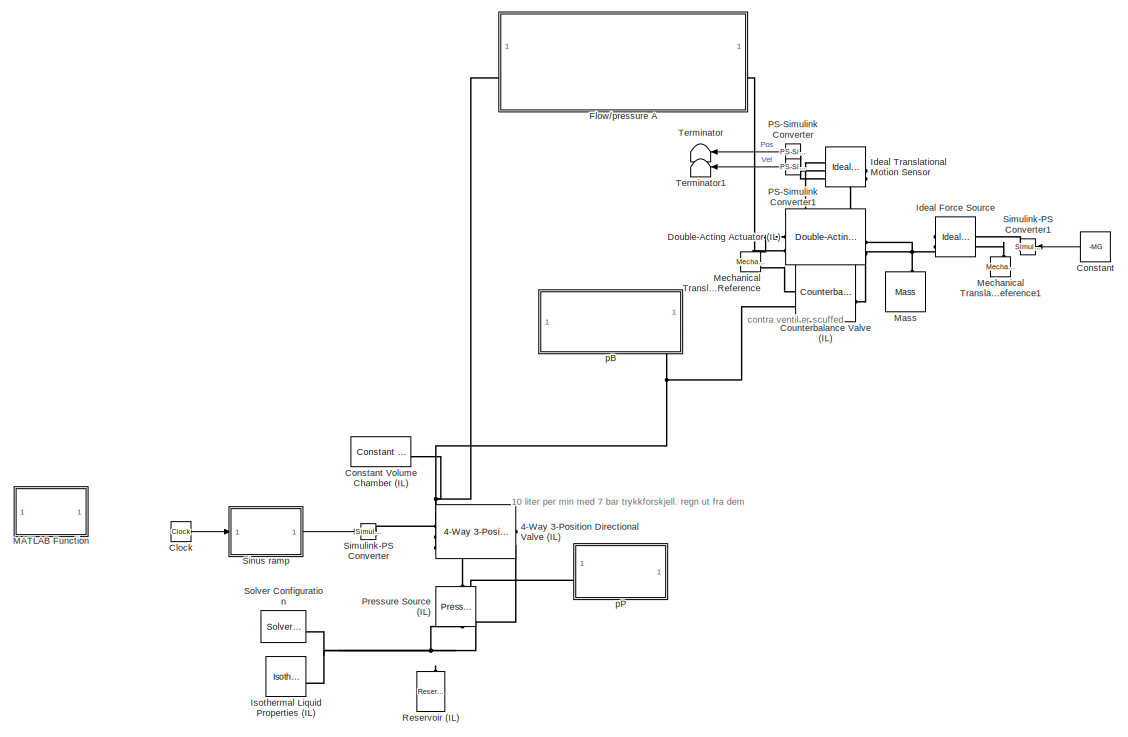
[diagram: root canvas - part 1/2, left side, full height]
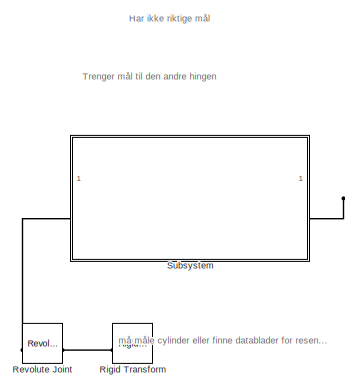
[diagram: root canvas - part 2/2, middle right region]
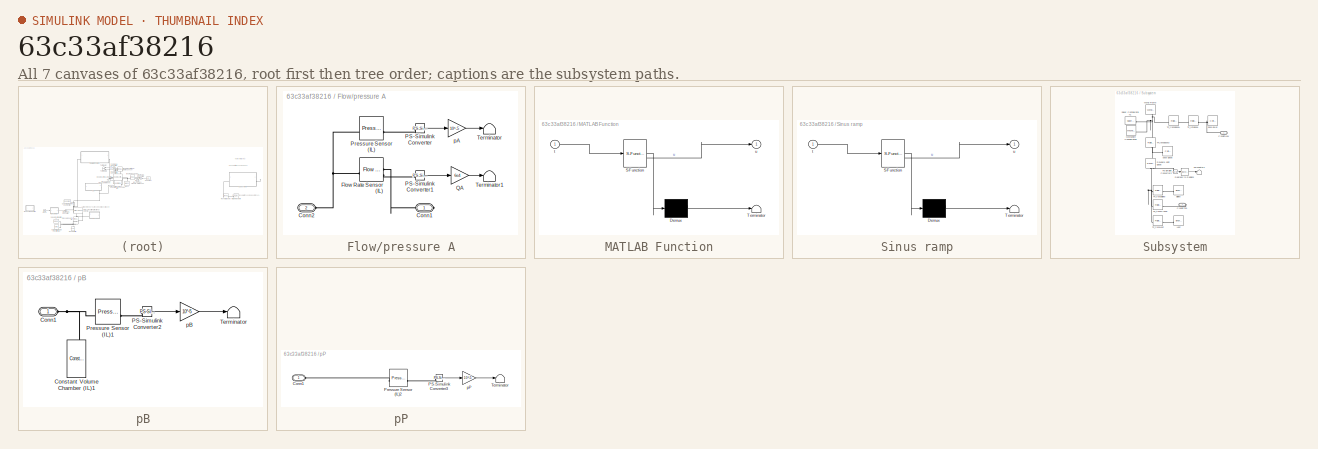
[diagram: thumbnail index - all 7 canvases of the model, root first then tree order]
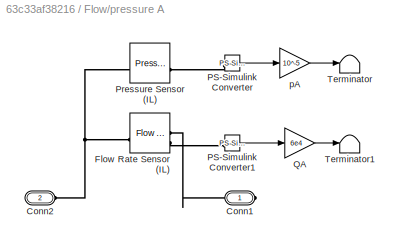
MODEL slx_63c33af38216
KIND model
CONFIG AbsTol = auto
CONFIG EnableMultiTasking = off
CONFIG FixedStep = auto
CONFIG MaxStep = auto
CONFIG MinStep = auto
CONFIG RelTol = 1e-3
CONFIG SampleTimeConstraint = Unconstrained
CONFIG SolverName = VariableStepAuto
CONFIG StartTime = 0.0
CONFIG StopTime = 15
WORKSPACE source: MATLAB code (in-file)
WORKSPACE code: clear;
WORKSPACE rho = 875
WORKSPACE beta = 1000
WORKSPACE pP = 140
WORKSPACE dp0 = 70e5  (= 7000000)
WORKSPACE Q0 = 100/6e4  (= 0.00166666666667)
WORKSPACE Cd = 0.75
WORKSPACE AdMax_SI = Q0/(Cd*(2/rho*dp0)^0.5)  (= 1.75682092232e-05)
WORKSPACE AdMax = AdMax_SI*1e6  (= 17.5682092232)
WORKSPACE d = 42
WORKSPACE dr = 30
WORKSPACE A = pi*d^2/4  (= 1385.44236023)
WORKSPACE Ar = pi*dr^2/4  (= 706.858347058)
WORKSPACE Aa = A - Ar  (= 678.584013175)
WORKSPACE L0 = 1600
WORKSPACE m = 75*4 + 20 + 90  (= 410)
WORKSPACE g = 9.81
WORKSPACE MG = m*g  (= 4022.1)
WORKSPACE pLoad = MG/Ar  (= 5.69010752542)
WORKSPACE x_Init = 200
WORKSPACE Cx = 440
WORKSPACE Cz = -1060
WORKSPACE theta_Init = 0
WORKSPACE thetaDot_Init = 0
WORKSPACE L1 = 2000 + 1463 + 215  (= 3678)
WORKSPACE B1 = 100
WORKSPACE H1 = 150
WORKSPACE t1 = 6
WORKSPACE abx = 0.730-0.100-0.080  (= 0.55)
WORKSPACE aby = (0.223-0.075)  (= 0.148)
WORKSPACE L2 = 50*4 + 12  (= 212)
WORKSPACE B2 = 700
WORKSPACE H2 = 300
BLOCK [Reference] 4-Way 3-Position Directional Valve (IL)  REF=SimscapeFluids_lib/Isothermal Liquid/Valves & Orifices/Directional Control
Valves/4-Way 3-Position
Directional Valve
(IL)
  SourceBlock = SimscapeFluids_lib/Isothermal Liquid/Valves & Orifices/Directional Control\nValves/4-Way 3-Position\nDirectional Valve\n(IL)
  SourceType = 4-Way 3-Position\nDirectional Valve\n(IL)
BLOCK [Clock] Clock
BLOCK [Constant] Constant
  NameLocation = top
  Value = -MG
BLOCK [Reference] Constant Volume Chamber (IL)  REF=fl_lib/Isothermal Liquid/Elements/Constant Volume
Chamber (IL)
  SourceBlock = fl_lib/Isothermal Liquid/Elements/Constant Volume\nChamber (IL)
  SourceType = Constant Volume\nChamber (IL)
BLOCK [Reference] Counterbalance Valve (IL)  REF=SimscapeFluids_lib/Isothermal Liquid/Valves & Orifices/Pressure Control
Valves/Counterbalance Valve
(IL)
  SourceBlock = SimscapeFluids_lib/Isothermal Liquid/Valves & Orifices/Pressure Control\nValves/Counterbalance Valve\n(IL)
  SourceType = Counterbalance Valve\n(IL)
BLOCK [Reference] Double-Acting Actuator (IL)  REF=SimscapeFluids_lib/Isothermal Liquid/Actuators/Double-Acting
Actuator (IL)
  SourceBlock = SimscapeFluids_lib/Isothermal Liquid/Actuators/Double-Acting\nActuator (IL)
  SourceType = Double-Acting\nActuator (IL)
BLOCK [SubSystem] Flow//pressure A
BLOCK [PMIOPort] Flow//pressure A/Conn1
  Side = Right
BLOCK [PMIOPort] Flow//pressure A/Conn2
  Port = 2
  Side = Left
BLOCK [Reference] Flow//pressure A/Flow Rate Sensor (IL)  REF=fl_lib/Isothermal Liquid/Sensors/Flow Rate Sensor
(IL)
  SourceBlock = fl_lib/Isothermal Liquid/Sensors/Flow Rate Sensor\n(IL)
  SourceType = Flow Rate Sensor\n(IL)
BLOCK [Reference] Flow//pressure A/PS-Simulink Converter  REF=nesl_utility/PS-Simulink
Converter
  SourceBlock = nesl_utility/PS-Simulink\nConverter
  SourceType = PS-Simulink\nConverter
BLOCK [Reference] Flow//pressure A/PS-Simulink Converter1  REF=nesl_utility/PS-Simulink
Converter
  SourceBlock = nesl_utility/PS-Simulink\nConverter
  SourceType = PS-Simulink\nConverter
BLOCK [Reference] Flow//pressure A/Pressure Sensor (IL)  REF=fl_lib/Isothermal Liquid/Sensors/Pressure Sensor (IL)
  SourceBlock = fl_lib/Isothermal Liquid/Sensors/Pressure Sensor (IL)
  SourceType = Pressure Sensor (IL)
BLOCK [Gain] Flow//pressure A/QA
  Gain = 6e4
BLOCK [Terminator] Flow//pressure A/Terminator
BLOCK [Terminator] Flow//pressure A/Terminator1
BLOCK [Gain] Flow//pressure A/pA
  Gain = 10^-5
BLOCK [Reference] Ideal Force Source  REF=fl_lib/Mechanical/Mechanical Sources/Ideal Force Source
  NameLocation = top
  SourceBlock = fl_lib/Mechanical/Mechanical Sources/Ideal Force Source
  SourceType = Ideal Force Source
BLOCK [Reference] Ideal Translational Motion Sensor  REF=fl_lib/Mechanical/Mechanical Sensors/Ideal Translational
Motion Sensor
  NameLocation = top
  SourceBlock = fl_lib/Mechanical/Mechanical Sensors/Ideal Translational\nMotion Sensor
  SourceType = Ideal Translational\nMotion Sensor
BLOCK [Reference] Isothermal Liquid Properties (IL)  REF=fl_lib/Isothermal Liquid/Utilities/Isothermal Liquid
Properties (IL)
  SourceBlock = fl_lib/Isothermal Liquid/Utilities/Isothermal Liquid\nProperties (IL)
  SourceType = Isothermal Liquid\nProperties (IL)
BLOCK [SubSystem] MATLAB Function
  Commented = on
  ErrorFcn = Stateflow.Translate.translate
  PermitHierarchicalResolution = ExplicitOnly
  SFBlockType = MATLAB Function
  TreatAsAtomicUnit = on
BLOCK [Demux] MATLAB Function/ Demux 
  Outputs = 1
BLOCK [S-Function] MATLAB Function/ SFunction 
  EnableBusSupport = off
  FunctionName = sf_sfun
  PortCounts = [1 2]
  SFcnIsStateOwnerBlock = off
  SFunctionDeploymentMode = off
  Tag = Stateflow S-Function 2
BLOCK [Terminator] MATLAB Function/ Terminator 
BLOCK [Inport] MATLAB Function/t
BLOCK [Outport] MATLAB Function/u
BLOCK [Reference] Mass  REF=fl_lib/Mechanical/Translational
Elements/Mass
  NameLocation = right
  SourceBlock = fl_lib/Mechanical/Translational\nElements/Mass
  SourceType = Mass
BLOCK [Reference] Mechanical Translational Reference  REF=fl_lib/Mechanical/Translational
Elements/Mechanical
Translational
Reference
  NameLocation = right
  SourceBlock = fl_lib/Mechanical/Translational\nElements/Mechanical\nTranslational\nReference
  SourceType = Mechanical\nTranslational\nReference
BLOCK [Reference] Mechanical Translational Reference1  REF=fl_lib/Mechanical/Translational
Elements/Mechanical
Translational
Reference
  NameLocation = right
  SourceBlock = fl_lib/Mechanical/Translational\nElements/Mechanical\nTranslational\nReference
  SourceType = Mechanical\nTranslational\nReference
BLOCK [Reference] PS-Simulink Converter  REF=nesl_utility/PS-Simulink
Converter
  NameLocation = top
  SourceBlock = nesl_utility/PS-Simulink\nConverter
  SourceType = PS-Simulink\nConverter
BLOCK [Reference] PS-Simulink Converter1  REF=nesl_utility/PS-Simulink
Converter
  NameLocation = top
  SourceBlock = nesl_utility/PS-Simulink\nConverter
  SourceType = PS-Simulink\nConverter
BLOCK [Reference] Pressure Source (IL)  REF=fl_lib/Isothermal Liquid/Sources/Pressure Source (IL)
  NameLocation = right
  SourceBlock = fl_lib/Isothermal Liquid/Sources/Pressure Source (IL)
  SourceType = Pressure Source (IL)
BLOCK [Reference] Reservoir (IL)  REF=fl_lib/Isothermal Liquid/Elements/Reservoir (IL)
  NameLocation = right
  SourceBlock = fl_lib/Isothermal Liquid/Elements/Reservoir (IL)
  SourceType = Reservoir (IL)
BLOCK [Reference] Revolute Joint  REF=sm_lib/Joints/Revolute Joint
  SourceBlock = sm_lib/Joints/Revolute Joint
  SourceType = Revolute Joint
BLOCK [Reference] Rigid Transform  REF=sm_lib/Frames and
Transforms/Rigid
Transform
  SourceBlock = sm_lib/Frames and\nTransforms/Rigid\nTransform
  SourceType = Rigid\nTransform
BLOCK [Reference] Simulink-PS Converter  REF=nesl_utility/Simulink-PS
Converter
  SourceBlock = nesl_utility/Simulink-PS\nConverter
  SourceType = Simulink-PS\nConverter
BLOCK [Reference] Simulink-PS Converter1  REF=nesl_utility/Simulink-PS
Converter
  NameLocation = top
  SourceBlock = nesl_utility/Simulink-PS\nConverter
  SourceType = Simulink-PS\nConverter
BLOCK [SubSystem] Sinus ramp
  ErrorFcn = Stateflow.Translate.translate
  PermitHierarchicalResolution = ExplicitOnly
  SFBlockType = MATLAB Function
  TreatAsAtomicUnit = on
BLOCK [Demux] Sinus ramp/ Demux 
  Outputs = 1
BLOCK [S-Function] Sinus ramp/ SFunction 
  EnableBusSupport = off
  FunctionName = sf_sfun
  PortCounts = [1 2]
  SFcnIsStateOwnerBlock = off
  SFunctionDeploymentMode = off
  Tag = Stateflow S-Function 1
BLOCK [Terminator] Sinus ramp/ Terminator 
BLOCK [Inport] Sinus ramp/t
BLOCK [Outport] Sinus ramp/u
BLOCK [Reference] Solver Configuration  REF=nesl_utility/Solver
Configuration
  SourceBlock = nesl_utility/Solver\nConfiguration
  SourceType = Solver\nConfiguration
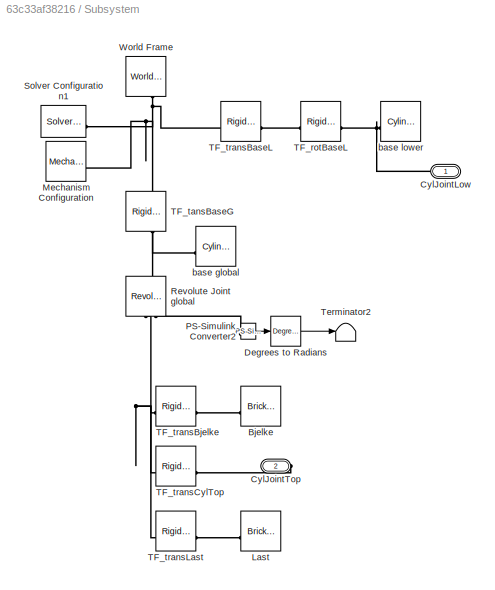
BLOCK [SubSystem] Subsystem
BLOCK [Reference] Subsystem/Bjelke  REF=sm_lib/Body Elements/Brick Solid
  NameLocation = top
  SourceBlock = sm_lib/Body Elements/Brick Solid
  SourceType = Brick Solid
BLOCK [PMIOPort] Subsystem/CylJointLow
  NameLocation = top
  Side = Left
BLOCK [PMIOPort] Subsystem/CylJointTop
  NameLocation = top
  Port = 2
  Side = Right
BLOCK [Reference] Subsystem/Degrees to Radians  REF=simulink_extras/Transformations/Degrees to
Radians
  SourceBlock = simulink_extras/Transformations/Degrees to\nRadians
  SourceType = DegreesToRadians
BLOCK [Reference] Subsystem/Last  REF=sm_lib/Body Elements/Brick Solid
  NameLocation = top
  SourceBlock = sm_lib/Body Elements/Brick Solid
  SourceType = Brick Solid
BLOCK [Reference] Subsystem/Mechanism Configuration  REF=sm_lib/Utilities/Mechanism
Configuration
  SourceBlock = sm_lib/Utilities/Mechanism\nConfiguration
  SourceType = Mechanism\nConfiguration
BLOCK [Reference] Subsystem/PS-Simulink Converter2  REF=nesl_utility/PS-Simulink
Converter
  SourceBlock = nesl_utility/PS-Simulink\nConverter
  SourceType = PS-Simulink\nConverter
BLOCK [Reference] Subsystem/Revolute Joint global  REF=sm_lib/Joints/Revolute Joint
  NameLocation = left
  SourceBlock = sm_lib/Joints/Revolute Joint
  SourceType = Revolute Joint
BLOCK [Reference] Subsystem/Solver Configuration1  REF=nesl_utility/Solver
Configuration
  SourceBlock = nesl_utility/Solver\nConfiguration
  SourceType = Solver\nConfiguration
BLOCK [Reference] Subsystem/TF_rotBaseL  REF=sm_lib/Frames and
Transforms/Rigid
Transform
  SourceBlock = sm_lib/Frames and\nTransforms/Rigid\nTransform
  SourceType = Rigid\nTransform
BLOCK [Reference] Subsystem/TF_tansBaseG  REF=sm_lib/Frames and
Transforms/Rigid
Transform
  NameLocation = left
  SourceBlock = sm_lib/Frames and\nTransforms/Rigid\nTransform
  SourceType = Rigid\nTransform
BLOCK [Reference] Subsystem/TF_transBaseL  REF=sm_lib/Frames and
Transforms/Rigid
Transform
  SourceBlock = sm_lib/Frames and\nTransforms/Rigid\nTransform
  SourceType = Rigid\nTransform
BLOCK [Reference] Subsystem/TF_transBjelke  REF=sm_lib/Frames and
Transforms/Rigid
Transform
  SourceBlock = sm_lib/Frames and\nTransforms/Rigid\nTransform
  SourceType = Rigid\nTransform
BLOCK [Reference] Subsystem/TF_transCylTop  REF=sm_lib/Frames and
Transforms/Rigid
Transform
  SourceBlock = sm_lib/Frames and\nTransforms/Rigid\nTransform
  SourceType = Rigid\nTransform
BLOCK [Reference] Subsystem/TF_transLast  REF=sm_lib/Frames and
Transforms/Rigid
Transform
  SourceBlock = sm_lib/Frames and\nTransforms/Rigid\nTransform
  SourceType = Rigid\nTransform
BLOCK [Terminator] Subsystem/Terminator2
BLOCK [Reference] Subsystem/World Frame  REF=sm_lib/Frames and
Transforms/World Frame
  NameLocation = left
  SourceBlock = sm_lib/Frames and\nTransforms/World Frame
  SourceType = World Frame
BLOCK [Reference] Subsystem/base global  REF=sm_lib/Body Elements/Cylindrical Solid
  NameLocation = top
  SourceBlock = sm_lib/Body Elements/Cylindrical Solid
  SourceType = Cylindrical Solid
BLOCK [Reference] Subsystem/base lower  REF=sm_lib/Body Elements/Cylindrical Solid
  NameLocation = top
  SourceBlock = sm_lib/Body Elements/Cylindrical Solid
  SourceType = Cylindrical Solid
BLOCK [Terminator] Terminator
  NameLocation = top
BLOCK [Terminator] Terminator1
  NameLocation = top
BLOCK [SubSystem] pB
  NameLocation = top
BLOCK [PMIOPort] pB/Conn1
  Side = Left
BLOCK [Reference] pB/Constant Volume Chamber (IL)1  REF=fl_lib/Isothermal Liquid/Elements/Constant Volume
Chamber (IL)
  NameLocation = right
  SourceBlock = fl_lib/Isothermal Liquid/Elements/Constant Volume\nChamber (IL)
  SourceType = Constant Volume\nChamber (IL)
BLOCK [Reference] pB/PS-Simulink Converter2  REF=nesl_utility/PS-Simulink
Converter
  SourceBlock = nesl_utility/PS-Simulink\nConverter
  SourceType = PS-Simulink\nConverter
BLOCK [Reference] pB/Pressure Sensor (IL)1  REF=fl_lib/Isothermal Liquid/Sensors/Pressure Sensor (IL)
  SourceBlock = fl_lib/Isothermal Liquid/Sensors/Pressure Sensor (IL)
  SourceType = Pressure Sensor (IL)
BLOCK [Terminator] pB/Terminator
BLOCK [Gain] pB/pB
  Gain = 10^-5
BLOCK [SubSystem] pP
BLOCK [PMIOPort] pP/Conn1
  Side = Left
BLOCK [Reference] pP/PS-Simulink Converter3  REF=nesl_utility/PS-Simulink
Converter
  SourceBlock = nesl_utility/PS-Simulink\nConverter
  SourceType = PS-Simulink\nConverter
BLOCK [Reference] pP/Pressure Sensor (IL)2  REF=fl_lib/Isothermal Liquid/Sensors/Pressure Sensor (IL)
  SourceBlock = fl_lib/Isothermal Liquid/Sensors/Pressure Sensor (IL)
  SourceType = Pressure Sensor (IL)
BLOCK [Terminator] pP/Terminator
BLOCK [Gain] pP/pP
  Gain = 10^-5
ANNOTATION (root): 10 liter per min med 7 bar trykkforskjell. regn ut fra dem
ANNOTATION (root): Har ikke riktige mål
ANNOTATION (root): Trenger mål til den andre hingen
ANNOTATION (root): contra ventil er scuffed
ANNOTATION (root): må måle cylinder eller finne datablader for resen...
LINE Clock:1 -> Sinus ramp:1
LINE Constant:1 -> Simulink-PS Converter1:1
LINE Flow//pressure A/PS-Simulink Converter1:1 -> Flow//pressure A/QA:1
LINE Flow//pressure A/PS-Simulink Converter:1 -> Flow//pressure A/pA:1
LINE Flow//pressure A/QA:1 -> Flow//pressure A/Terminator1:1
LINE Flow//pressure A/pA:1 -> Flow//pressure A/Terminator:1
LINE PS-Simulink Converter1:1 -> Terminator1:1
LINE PS-Simulink Converter:1 -> Terminator:1
LINE Sinus ramp:1 -> Simulink-PS Converter:1
LINE Subsystem/Degrees to Radians:1 -> Subsystem/Terminator2:1
LINE Subsystem/PS-Simulink Converter2:1 -> Subsystem/Degrees to Radians:1
LINE pB/PS-Simulink Converter2:1 -> pB/pB:1
LINE pB/pB:1 -> pB/Terminator:1
LINE pP/PS-Simulink Converter3:1 -> pP/pP:1
LINE pP/pP:1 -> pP/Terminator:1
PLINE 4-Way 3-Position Directional Valve (IL):LConn1 -- Simulink-PS Converter:RConn1
PNET net1: 4-Way 3-Position Directional Valve (IL):LConn2 -- Constant Volume Chamber (IL):LConn1 -- Flow//pressure A:LConn1
PNET net2: 4-Way 3-Position Directional Valve (IL):LConn3 -- Counterbalance Valve (IL):RConn2 -- pB:LConn1
PNET net3: 4-Way 3-Position Directional Valve (IL):RConn1 -- Pressure Source (IL):RConn1 -- pP:LConn1
PNET net4: 4-Way 3-Position Directional Valve (IL):RConn2 -- Isothermal Liquid Properties (IL):RConn1 -- Pressure Source (IL):LConn1 -- Reservoir (IL):LConn1 -- Solver Configuration:RConn1
PLINE Counterbalance Valve (IL):LConn1 -- Double-Acting Actuator (IL):RConn3
PNET net5: Counterbalance Valve (IL):RConn1 -- Double-Acting Actuator (IL):LConn2 -- Flow//pressure A:RConn1
PNET net6: Double-Acting Actuator (IL):LConn1 -- Ideal Translational Motion Sensor:RConn1 -- Mechanical Translational Reference:LConn1
PNET net7: Double-Acting Actuator (IL):RConn2 -- Ideal Force Source:LConn1 -- Ideal Translational Motion Sensor:LConn1 -- Mass:LConn1
PLINE Flow//pressure A/Conn1:RConn1 -- Flow//pressure A/Flow Rate Sensor (IL):RConn1
PNET net8: Flow//pressure A/Conn2:RConn1 -- Flow//pressure A/Flow Rate Sensor (IL):LConn1 -- Flow//pressure A/Pressure Sensor (IL):LConn1
PLINE Flow//pressure A/Flow Rate Sensor (IL):RConn2 -- Flow//pressure A/PS-Simulink Converter1:LConn1
PLINE Flow//pressure A/PS-Simulink Converter:LConn1 -- Flow//pressure A/Pressure Sensor (IL):RConn1
PLINE Ideal Force Source:RConn1 -- Simulink-PS Converter1:RConn1
PLINE Ideal Force Source:RConn2 -- Mechanical Translational Reference1:LConn1
PLINE Ideal Translational Motion Sensor:RConn2 -- PS-Simulink Converter1:LConn1
PLINE Ideal Translational Motion Sensor:RConn3 -- PS-Simulink Converter:LConn1
PLINE Revolute Joint:LConn1 -- Subsystem:LConn1
PLINE Revolute Joint:RConn1 -- Rigid Transform:LConn1
PLINE Subsystem/Bjelke:RConn1 -- Subsystem/TF_transBjelke:RConn1
PNET net9: Subsystem/CylJointLow:RConn1 -- Subsystem/TF_rotBaseL:RConn1 -- Subsystem/base lower:RConn1
PLINE Subsystem/CylJointTop:RConn1 -- Subsystem/TF_transCylTop:RConn1
PLINE Subsystem/Last:RConn1 -- Subsystem/TF_transLast:RConn1
PNET net10: Subsystem/Mechanism Configuration:RConn1 -- Subsystem/Solver Configuration1:RConn1 -- Subsystem/TF_tansBaseG:LConn1 -- Subsystem/TF_transBaseL:LConn1 -- Subsystem/World Frame:RConn1
PLINE Subsystem/PS-Simulink Converter2:LConn1 -- Subsystem/Revolute Joint global:RConn2
PNET net11: Subsystem/Revolute Joint global:LConn1 -- Subsystem/TF_tansBaseG:RConn1 -- Subsystem/base global:RConn1
PNET net12: Subsystem/Revolute Joint global:RConn1 -- Subsystem/TF_transBjelke:LConn1 -- Subsystem/TF_transCylTop:LConn1 -- Subsystem/TF_transLast:LConn1
PLINE Subsystem/TF_rotBaseL:LConn1 -- Subsystem/TF_transBaseL:RConn1
PNET net13: pB/Conn1:RConn1 -- pB/Constant Volume Chamber (IL)1:LConn1 -- pB/Pressure Sensor (IL)1:LConn1
PLINE pB/PS-Simulink Converter2:LConn1 -- pB/Pressure Sensor (IL)1:RConn1
PLINE pP/Conn1:RConn1 -- pP/Pressure Sensor (IL)2:LConn1
PLINE pP/PS-Simulink Converter3:LConn1 -- pP/Pressure Sensor (IL)2:RConn1
note: PNET lines group multi-terminal physical nets as a canonical sorted terminal list (undirected conserving connections); 2-terminal nets keep the pairwise PLINE form
CHART MATLAB Function states=1 transitions=1
  STATE_LABEL 'eML_blk_kernel()'
  STATE_LABEL 'SCRIPT:\nfunction u = valve_control(t)\n% Time parameters [s]\nt_ramp = 2;      % time to open/close\nt_hold = 2;      % time to hold position\nu_max  = 0.5;    % max valve opening (use <1 for realism)\n\n% Timeline:\n% 0–2   : ramp up (0 → +u_max)\n% 2–4   : hold up\n% 4–6   : ramp down (+u_max → 0)\n% 6–8   : hold\n% 8–10  : ramp down (0 → -u_max)\n% 10–12 : hold\n% >12   : closed\n\nif t < t_ramp\n    % Ramp up...<+465ch>'
CHART Sinus ramp states=1 transitions=1
  STATE_LABEL 'eML_blk_kernel()'
  STATE_LABEL 'SCRIPT:\nfunction u = valve_control(t)\n\nt_ramp = 2;\nt_hold = 2;\nu_max  = 0.6;\n\nif t < t_ramp\n    % Smooth ramp up\n    tau = t / t_ramp;\n    u = u_max * 0.5 * (1 - cos(pi*tau));\n\nelseif t < t_ramp + t_hold\n    u = u_max;\n\nelseif t < 2*t_ramp + t_hold\n    % Smooth ramp to zero\n    tau = (t - t_ramp - t_hold) / t_ramp;\n    u = u_max * 0.5 * (1 + cos(pi*tau));\n\nelseif t < 2*t_ramp + 2*t_hold\n    u = 0;...<+213ch>'
CHART  states=0 transitions=0
CHART  states=0 transitions=0
